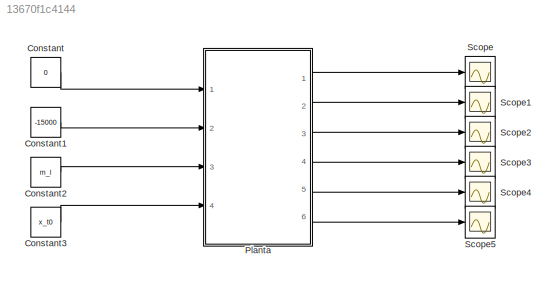
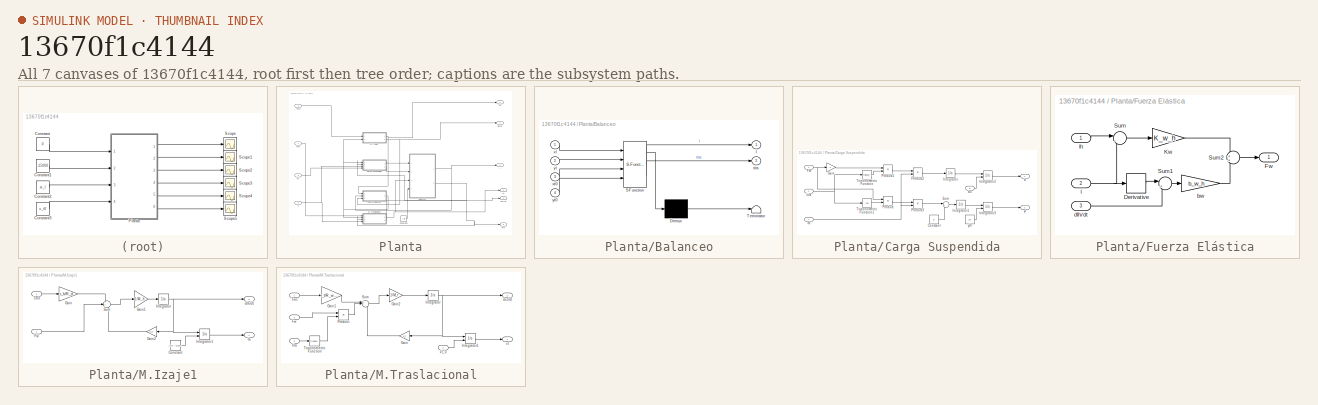
[diagram: thumbnail index - all 7 canvases of the model, root first then tree order]
MODEL slx_13670f1c4144
KIND model
CONFIG AbsTol = auto
CONFIG EnableMultiTasking = off
CONFIG FixedStep = auto
CONFIG MaxStep = auto
CONFIG MinStep = auto
CONFIG RelTol = 1e-3
CONFIG SampleTimeConstraint = Unconstrained
CONFIG Solver = VariableStepAuto
CONFIG SolverName = VariableStepAuto
CONFIG StartTime = 0.0
CONFIG StopTime = 100.0
BLOCK [Constant] Constant
  Value = 0
BLOCK [Constant] Constant1
  Value = -15000
BLOCK [Constant] Constant2
  Value = m_l
BLOCK [Constant] Constant3
  Value = x_t0
BLOCK [SubSystem] Planta
  Ports = [4, 6]
  RequestExecContextInheritance = off
  Variant = off
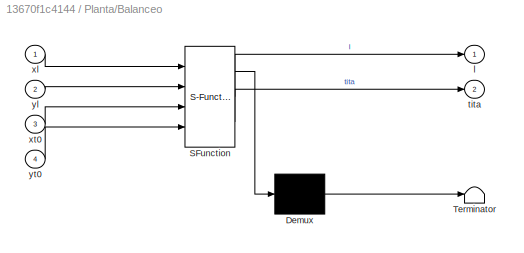
BLOCK [SubSystem] Planta/Balanceo
  ErrorFcn = Stateflow.Translate.translate
  PermitHierarchicalResolution = ExplicitOnly
  Ports = [4, 2]
  RequestExecContextInheritance = off
  SFBlockType = MATLAB Function
  TreatAsAtomicUnit = on
  Variant = off
BLOCK [Demux] Planta/Balanceo/ Demux 
  Outputs = 1
  Ports = [1, 1]
BLOCK [S-Function] Planta/Balanceo/ SFunction 
  EnableBusSupport = on
  FunctionName = sf_sfun
  PortCounts = [4 3]
  Ports = [4, 3]
  SFcnIsStateOwnerBlock = off
  SFunctionDeploymentMode = off
  Tag = Stateflow S-Function Planta 3
BLOCK [Terminator] Planta/Balanceo/ Terminator 
BLOCK [Outport] Planta/Balanceo/l
  IconDisplay = Port number
BLOCK [Outport] Planta/Balanceo/tita
  IconDisplay = Port number
  Port = 2
BLOCK [Inport] Planta/Balanceo/xl
  IconDisplay = Port number
BLOCK [Inport] Planta/Balanceo/xt0
  IconDisplay = Port number
  Port = 3
BLOCK [Inport] Planta/Balanceo/yl
  IconDisplay = Port number
  Port = 2
BLOCK [Inport] Planta/Balanceo/yt0
  IconDisplay = Port number
  Port = 4
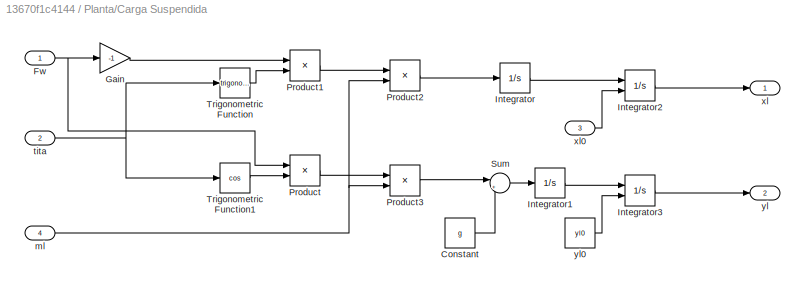
BLOCK [SubSystem] Planta/Carga Suspendida
  Ports = [4, 2]
  RequestExecContextInheritance = off
  Variant = off
BLOCK [Constant] Planta/Carga Suspendida/Constant
  Value = g
BLOCK [Inport] Planta/Carga Suspendida/Fw
  IconDisplay = Port number
BLOCK [Gain] Planta/Carga Suspendida/Gain
  Gain = -1
  OutDataTypeStr = Inherit: Inherit via internal rule
  ParamDataTypeStr = Inherit: Inherit via internal rule
  SaturateOnIntegerOverflow = off
BLOCK [Integrator] Planta/Carga Suspendida/Integrator
  Ports = [1, 1]
BLOCK [Integrator] Planta/Carga Suspendida/Integrator1
  Ports = [1, 1]
BLOCK [Integrator] Planta/Carga Suspendida/Integrator2
  InitialConditionSource = external
  Ports = [2, 1]
BLOCK [Integrator] Planta/Carga Suspendida/Integrator3
  InitialConditionSource = external
  Ports = [2, 1]
BLOCK [Product] Planta/Carga Suspendida/Product
  InputSameDT = off
  OutDataTypeStr = Inherit: Inherit via internal rule
  Ports = [2, 1]
  RndMeth = Floor
  SaturateOnIntegerOverflow = off
BLOCK [Product] Planta/Carga Suspendida/Product1
  InputSameDT = off
  OutDataTypeStr = Inherit: Inherit via internal rule
  Ports = [2, 1]
  RndMeth = Floor
  SaturateOnIntegerOverflow = off
BLOCK [Product] Planta/Carga Suspendida/Product2
  InputSameDT = off
  Inputs = */
  OutDataTypeStr = Inherit: Inherit via internal rule
  Ports = [2, 1]
  RndMeth = Floor
  SaturateOnIntegerOverflow = off
BLOCK [Product] Planta/Carga Suspendida/Product3
  InputSameDT = off
  Inputs = */
  OutDataTypeStr = Inherit: Inherit via internal rule
  Ports = [2, 1]
  RndMeth = Floor
  SaturateOnIntegerOverflow = off
BLOCK [Sum] Planta/Carga Suspendida/Sum
  IconShape = round
  InputSameDT = off
  Inputs = |+-
  OutDataTypeStr = Inherit: Inherit via internal rule
  Ports = [2, 1]
  SaturateOnIntegerOverflow = off
BLOCK [Trigonometry] Planta/Carga Suspendida/Trigonometric Function
  Ports = [1, 1]
BLOCK [Trigonometry] Planta/Carga Suspendida/Trigonometric Function1
  Operator = cos
  Ports = [1, 1]
BLOCK [Inport] Planta/Carga Suspendida/ml
  IconDisplay = Port number
  Port = 4
BLOCK [Inport] Planta/Carga Suspendida/tita
  IconDisplay = Port number
  Port = 2
BLOCK [Outport] Planta/Carga Suspendida/xl
  IconDisplay = Port number
BLOCK [Inport] Planta/Carga Suspendida/xl0
  IconDisplay = Port number
  Port = 3
BLOCK [Outport] Planta/Carga Suspendida/yl
  IconDisplay = Port number
  Port = 2
BLOCK [Constant] Planta/Carga Suspendida/yl0
  Value = yl0
BLOCK [Constant] Planta/Constant
  Value = y_t0
BLOCK [SubSystem] Planta/Fuerza Elástica
  Ports = [3, 1]
  RequestExecContextInheritance = off
  Variant = off
BLOCK [Derivative] Planta/Fuerza Elástica/Derivative
BLOCK [Outport] Planta/Fuerza Elástica/Fw
  IconDisplay = Port number
BLOCK [Gain] Planta/Fuerza Elástica/Kw
  Gain = K_w_h
  OutDataTypeStr = Inherit: Inherit via internal rule
  ParamDataTypeStr = Inherit: Inherit via internal rule
  SaturateOnIntegerOverflow = off
BLOCK [Sum] Planta/Fuerza Elástica/Sum
  IconShape = round
  InputSameDT = off
  Inputs = |-+
  OutDataTypeStr = Inherit: Inherit via internal rule
  Ports = [2, 1]
  SaturateOnIntegerOverflow = off
BLOCK [Sum] Planta/Fuerza Elástica/Sum1
  IconShape = round
  InputSameDT = off
  Inputs = |+-
  OutDataTypeStr = Inherit: Inherit via internal rule
  Ports = [2, 1]
  SaturateOnIntegerOverflow = off
BLOCK [Sum] Planta/Fuerza Elástica/Sum2
  IconShape = round
  InputSameDT = off
  OutDataTypeStr = Inherit: Inherit via internal rule
  Ports = [2, 1]
  SaturateOnIntegerOverflow = off
BLOCK [Gain] Planta/Fuerza Elástica/bw
  Gain = b_w_h
  OutDataTypeStr = Inherit: Inherit via internal rule
  ParamDataTypeStr = Inherit: Inherit via internal rule
  SaturateOnIntegerOverflow = off
BLOCK [Inport] Planta/Fuerza Elástica/dlh//dt
  IconDisplay = Port number
  Port = 3
BLOCK [Inport] Planta/Fuerza Elástica/l
  IconDisplay = Port number
  Port = 2
BLOCK [Inport] Planta/Fuerza Elástica/lh
  IconDisplay = Port number
BLOCK [SubSystem] Planta/M.Izaje1
  Ports = [2, 2]
  RequestExecContextInheritance = off
  Variant = off
BLOCK [Constant] Planta/M.Izaje1/Constant
  Value = y_t0 - h_contenedor - 5
BLOCK [Inport] Planta/M.Izaje1/Fw
  IconDisplay = Port number
  Port = 2
BLOCK [Gain] Planta/M.Izaje1/Gain
  Gain = r_h/R_d
  OutDataTypeStr = Inherit: Inherit via internal rule
  ParamDataTypeStr = Inherit: Inherit via internal rule
  SaturateOnIntegerOverflow = off
BLOCK [Gain] Planta/M.Izaje1/Gain1
  Gain = 1/M_h
  OutDataTypeStr = Inherit: Inherit via internal rule
  ParamDataTypeStr = Inherit: Inherit via internal rule
  SaturateOnIntegerOverflow = off
BLOCK [Gain] Planta/M.Izaje1/Gain2
  Gain = b_h
  OutDataTypeStr = Inherit: Inherit via internal rule
  ParamDataTypeStr = Inherit: Inherit via internal rule
  SaturateOnIntegerOverflow = off
BLOCK [Integrator] Planta/M.Izaje1/Integrator
  Ports = [1, 1]
BLOCK [Integrator] Planta/M.Izaje1/Integrator1
  InitialConditionSource = external
  Ports = [2, 1]
BLOCK [Sum] Planta/M.Izaje1/Sum
  IconShape = round
  InputSameDT = off
  Inputs = ++-
  OutDataTypeStr = Inherit: Inherit via internal rule
  Ports = [3, 1]
  SaturateOnIntegerOverflow = off
BLOCK [Inport] Planta/M.Izaje1/Tmh
  IconDisplay = Port number
BLOCK [Outport] Planta/M.Izaje1/dlh//dt
  IconDisplay = Port number
  Port = 2
BLOCK [Outport] Planta/M.Izaje1/lh
  IconDisplay = Port number
BLOCK [SubSystem] Planta/M.Traslacional
  Ports = [4, 2]
  RequestExecContextInheritance = off
  Variant = off
BLOCK [Inport] Planta/M.Traslacional/Fw
  IconDisplay = Port number
  Port = 2
BLOCK [Gain] Planta/M.Traslacional/Gain
  Gain = b_t
  OutDataTypeStr = Inherit: Inherit via internal rule
  ParamDataTypeStr = Inherit: Inherit via internal rule
  SaturateOnIntegerOverflow = off
BLOCK [Gain] Planta/M.Traslacional/Gain1
  Gain = r_t/R_w_t
  OutDataTypeStr = Inherit: Inherit via internal rule
  ParamDataTypeStr = Inherit: Inherit via internal rule
  SaturateOnIntegerOverflow = off
BLOCK [Gain] Planta/M.Traslacional/Gain2
  Gain = 1/M_t
  OutDataTypeStr = Inherit: Inherit via internal rule
  ParamDataTypeStr = Inherit: Inherit via internal rule
  SaturateOnIntegerOverflow = off
BLOCK [Integrator] Planta/M.Traslacional/Integrator
  Ports = [1, 1]
BLOCK [Integrator] Planta/M.Traslacional/Integrator1
  InitialConditionSource = external
  Ports = [2, 1]
BLOCK [Product] Planta/M.Traslacional/Product
  InputSameDT = off
  OutDataTypeStr = Inherit: Inherit via internal rule
  Ports = [2, 1]
  RndMeth = Floor
  SaturateOnIntegerOverflow = off
BLOCK [Sum] Planta/M.Traslacional/Sum
  IconShape = round
  InputSameDT = off
  Inputs = ++-
  OutDataTypeStr = Inherit: Inherit via internal rule
  Ports = [3, 1]
  SaturateOnIntegerOverflow = off
BLOCK [Inport] Planta/M.Traslacional/Tmt 
  IconDisplay = Port number
BLOCK [Trigonometry] Planta/M.Traslacional/Trigonometric Function
  Ports = [1, 1]
BLOCK [Outport] Planta/M.Traslacional/dxt//dt
  IconDisplay = Port number
  Port = 2
BLOCK [Inport] Planta/M.Traslacional/tita
  IconDisplay = Port number
  Port = 3
BLOCK [Outport] Planta/M.Traslacional/xt
  IconDisplay = Port number
BLOCK [Inport] Planta/M.Traslacional/xt_0
  IconDisplay = Port number
  Port = 4
BLOCK [Inport] Planta/Tmh
  IconDisplay = Port number
  Port = 2
BLOCK [Inport] Planta/Tmt
  IconDisplay = Port number
BLOCK [Outport] Planta/dlh//dt
  IconDisplay = Port number
  Port = 4
BLOCK [Outport] Planta/dxt//dt
  IconDisplay = Port number
  Port = 2
BLOCK [Outport] Planta/l
  IconDisplay = Port number
  Port = 6
BLOCK [Outport] Planta/lh
  IconDisplay = Port number
  Port = 3
BLOCK [Inport] Planta/ml
  IconDisplay = Port number
  Port = 3
BLOCK [Outport] Planta/tita
  IconDisplay = Port number
  Port = 5
BLOCK [Inport] Planta/x
  IconDisplay = Port number
  Port = 4
BLOCK [Outport] Planta/xt
  IconDisplay = Port number
BLOCK [Scope] Scope
  NumInputPorts = 1
  Ports = [1]
  ScopeSpecificationString = Simulink.scopes.TimeScopeBlockCfg('CurrentConfiguration', extmgr.ConfigurationSet(extmgr.Configuration('Core','General UI',true),extmgr.Configuration('Core','Source UI',true),extmgr.Configuration('Sources','WiredSimulink',true),extmgr.Configuration('Visuals','Time Domain',true,'SerializedDisplays',{struct('MinYLimReal','-1.00000','MaxYLimReal','1.00000','YLabelReal','','MinYLimMag','0.00000','MaxY...<+1383ch>
BLOCK [Scope] Scope1
  NumInputPorts = 1
  Ports = [1]
  ScopeSpecificationString = Simulink.scopes.TimeScopeBlockCfg('CurrentConfiguration', extmgr.ConfigurationSet(extmgr.Configuration('Core','General UI',true),extmgr.Configuration('Core','Source UI',true),extmgr.Configuration('Sources','WiredSimulink',true,'DataLoggingVariableName','ScopeData1'),extmgr.Configuration('Visuals','Time Domain',true,'SerializedDisplays',{struct('MinYLimReal','-1.00000','MaxYLimReal','1.00000','YLab...<+1367ch>
BLOCK [Scope] Scope2
  NumInputPorts = 1
  Ports = [1]
  ScopeSpecificationString = Simulink.scopes.TimeScopeBlockCfg('CurrentConfiguration', extmgr.ConfigurationSet(extmgr.Configuration('Core','General UI',true),extmgr.Configuration('Core','Source UI',true),extmgr.Configuration('Sources','WiredSimulink',true,'DataLoggingVariableName','ScopeData2'),extmgr.Configuration('Visuals','Time Domain',true,'SerializedDisplays',{struct('MinYLimReal','-28.67216','MaxYLimReal','628.07104','Y...<+1428ch>
BLOCK [Scope] Scope3
  NumInputPorts = 1
  Ports = [1]
  ScopeSpecificationString = Simulink.scopes.TimeScopeBlockCfg('CurrentConfiguration', extmgr.ConfigurationSet(extmgr.Configuration('Core','General UI',true),extmgr.Configuration('Core','Source UI',true),extmgr.Configuration('Sources','WiredSimulink',true,'DataLoggingVariableName','ScopeData3'),extmgr.Configuration('Visuals','Time Domain',true,'SerializedDisplays',{struct('MinYLimReal','-1.7576','MaxYLimReal','6.30869','YLabe...<+1418ch>
BLOCK [Scope] Scope4
  NumInputPorts = 1
  Ports = [1]
  ScopeSpecificationString = Simulink.scopes.TimeScopeBlockCfg('CurrentConfiguration', extmgr.ConfigurationSet(extmgr.Configuration('Core','General UI',true),extmgr.Configuration('Core','Source UI',true),extmgr.Configuration('Sources','WiredSimulink',true,'DataLoggingVariableName','ScopeData4'),extmgr.Configuration('Visuals','Time Domain',true),extmgr.Configuration('Tools','Plot Navigation',true),extmgr.Configuration('Tools',...<+40ch>
BLOCK [Scope] Scope5
  NumInputPorts = 1
  Ports = [1]
  ScopeSpecificationString = Simulink.scopes.TimeScopeBlockCfg('CurrentConfiguration', extmgr.ConfigurationSet(extmgr.Configuration('Core','General UI',true),extmgr.Configuration('Core','Source UI',true),extmgr.Configuration('Sources','WiredSimulink',true,'DataLoggingVariableName','ScopeData5'),extmgr.Configuration('Visuals','Time Domain',true),extmgr.Configuration('Tools','Plot Navigation',true),extmgr.Configuration('Tools',...<+40ch>
LINE Constant1:1 -> Planta:2
LINE Constant2:1 -> Planta:3
LINE Constant3:1 -> Planta:4
LINE Constant:1 -> Planta:1
NET Planta/Balanceo:1 -> Planta/Fuerza Elástica:2, Planta/l:1
NET Planta/Balanceo:2 -> Planta/Carga Suspendida:2, Planta/M.Traslacional:3, Planta/tita:1
LINE Planta/Carga Suspendida/Constant:1 -> Planta/Carga Suspendida/Sum:2
NET Planta/Carga Suspendida/Fw:1 -> Planta/Carga Suspendida/Gain:1, Planta/Carga Suspendida/Product:1
LINE Planta/Carga Suspendida/Gain:1 -> Planta/Carga Suspendida/Product1:1
LINE Planta/Carga Suspendida/Integrator1:1 -> Planta/Carga Suspendida/Integrator3:1
LINE Planta/Carga Suspendida/Integrator2:1 -> Planta/Carga Suspendida/xl:1
LINE Planta/Carga Suspendida/Integrator3:1 -> Planta/Carga Suspendida/yl:1
LINE Planta/Carga Suspendida/Integrator:1 -> Planta/Carga Suspendida/Integrator2:1
LINE Planta/Carga Suspendida/Product1:1 -> Planta/Carga Suspendida/Product2:1
LINE Planta/Carga Suspendida/Product2:1 -> Planta/Carga Suspendida/Integrator:1
LINE Planta/Carga Suspendida/Product3:1 -> Planta/Carga Suspendida/Sum:1
LINE Planta/Carga Suspendida/Product:1 -> Planta/Carga Suspendida/Product3:1
LINE Planta/Carga Suspendida/Sum:1 -> Planta/Carga Suspendida/Integrator1:1
LINE Planta/Carga Suspendida/Trigonometric Function1:1 -> Planta/Carga Suspendida/Product:2
LINE Planta/Carga Suspendida/Trigonometric Function:1 -> Planta/Carga Suspendida/Product1:2
NET Planta/Carga Suspendida/ml:1 -> Planta/Carga Suspendida/Product2:2, Planta/Carga Suspendida/Product3:2
NET Planta/Carga Suspendida/tita:1 -> Planta/Carga Suspendida/Trigonometric Function1:1, Planta/Carga Suspendida/Trigonometric Function:1
LINE Planta/Carga Suspendida/xl0:1 -> Planta/Carga Suspendida/Integrator2:2
LINE Planta/Carga Suspendida/yl0:1 -> Planta/Carga Suspendida/Integrator3:2
LINE Planta/Carga Suspendida:1 -> Planta/Balanceo:1
LINE Planta/Carga Suspendida:2 -> Planta/Balanceo:2
LINE Planta/Constant:1 -> Planta/Balanceo:4
LINE Planta/Fuerza Elástica/Derivative:1 -> Planta/Fuerza Elástica/Sum1:1
LINE Planta/Fuerza Elástica/Kw:1 -> Planta/Fuerza Elástica/Sum2:1
LINE Planta/Fuerza Elástica/Sum1:1 -> Planta/Fuerza Elástica/bw:1
LINE Planta/Fuerza Elástica/Sum2:1 -> Planta/Fuerza Elástica/Fw:1
LINE Planta/Fuerza Elástica/Sum:1 -> Planta/Fuerza Elástica/Kw:1
LINE Planta/Fuerza Elástica/bw:1 -> Planta/Fuerza Elástica/Sum2:2
LINE Planta/Fuerza Elástica/dlh//dt:1 -> Planta/Fuerza Elástica/Sum1:2
NET Planta/Fuerza Elástica/l:1 -> Planta/Fuerza Elástica/Derivative:1, Planta/Fuerza Elástica/Sum:2
LINE Planta/Fuerza Elástica/lh:1 -> Planta/Fuerza Elástica/Sum:1
NET Planta/Fuerza Elástica:1 -> Planta/Carga Suspendida:1, Planta/M.Izaje1:2, Planta/M.Traslacional:2
LINE Planta/M.Izaje1/Constant:1 -> Planta/M.Izaje1/Integrator1:2
LINE Planta/M.Izaje1/Fw:1 -> Planta/M.Izaje1/Sum:2
LINE Planta/M.Izaje1/Gain1:1 -> Planta/M.Izaje1/Integrator:1
LINE Planta/M.Izaje1/Gain2:1 -> Planta/M.Izaje1/Sum:3
LINE Planta/M.Izaje1/Gain:1 -> Planta/M.Izaje1/Sum:1
LINE Planta/M.Izaje1/Integrator1:1 -> Planta/M.Izaje1/lh:1
NET Planta/M.Izaje1/Integrator:1 -> Planta/M.Izaje1/Gain2:1, Planta/M.Izaje1/Integrator1:1, Planta/M.Izaje1/dlh//dt:1
LINE Planta/M.Izaje1/Sum:1 -> Planta/M.Izaje1/Gain1:1
LINE Planta/M.Izaje1/Tmh:1 -> Planta/M.Izaje1/Gain:1
NET Planta/M.Izaje1:1 -> Planta/Fuerza Elástica:1, Planta/lh:1
NET Planta/M.Izaje1:2 -> Planta/Fuerza Elástica:3, Planta/dlh//dt:1
LINE Planta/M.Traslacional/Fw:1 -> Planta/M.Traslacional/Product:1
LINE Planta/M.Traslacional/Gain1:1 -> Planta/M.Traslacional/Sum:1
LINE Planta/M.Traslacional/Gain2:1 -> Planta/M.Traslacional/Integrator:1
LINE Planta/M.Traslacional/Gain:1 -> Planta/M.Traslacional/Sum:3
LINE Planta/M.Traslacional/Integrator1:1 -> Planta/M.Traslacional/xt:1
NET Planta/M.Traslacional/Integrator:1 -> Planta/M.Traslacional/Gain:1, Planta/M.Traslacional/Integrator1:1, Planta/M.Traslacional/dxt//dt:1
LINE Planta/M.Traslacional/Product:1 -> Planta/M.Traslacional/Sum:2
LINE Planta/M.Traslacional/Sum:1 -> Planta/M.Traslacional/Gain2:1
LINE Planta/M.Traslacional/Tmt :1 -> Planta/M.Traslacional/Gain1:1
LINE Planta/M.Traslacional/Trigonometric Function:1 -> Planta/M.Traslacional/Product:2
LINE Planta/M.Traslacional/tita:1 -> Planta/M.Traslacional/Trigonometric Function:1
LINE Planta/M.Traslacional/xt_0:1 -> Planta/M.Traslacional/Integrator1:2
NET Planta/M.Traslacional:1 -> Planta/Balanceo:3, Planta/xt:1
LINE Planta/M.Traslacional:2 -> Planta/dxt//dt:1
LINE Planta/Tmh:1 -> Planta/M.Izaje1:1
LINE Planta/Tmt:1 -> Planta/M.Traslacional:1
LINE Planta/ml:1 -> Planta/Carga Suspendida:4
NET Planta/x:1 -> Planta/Carga Suspendida:3, Planta/M.Traslacional:4
LINE Planta:1 -> Scope:1
LINE Planta:2 -> Scope1:1
LINE Planta:3 -> Scope2:1
LINE Planta:4 -> Scope3:1
LINE Planta:5 -> Scope4:1
LINE Planta:6 -> Scope5:1
note: NET lines group one-source signal fan-out (src -> all destinations, sorted); 1:1 wires keep LINE
CHART Planta/Balanceo states=1 transitions=1
  STATE_LABEL 'eML_blk_kernel()'
  STATE_LABEL 'SCRIPT:\nfunction [l,tita] = fcn(xl,yl,xt0,yt0)\n\ndeltax = (xl - xt0);\ndeltay = -(yl - yt0);\n\n\nl = sqrt((deltax ^ 2) + (deltay ^ 2));\n\ntita = atan2(deltax, deltay);\n\nend\n'
